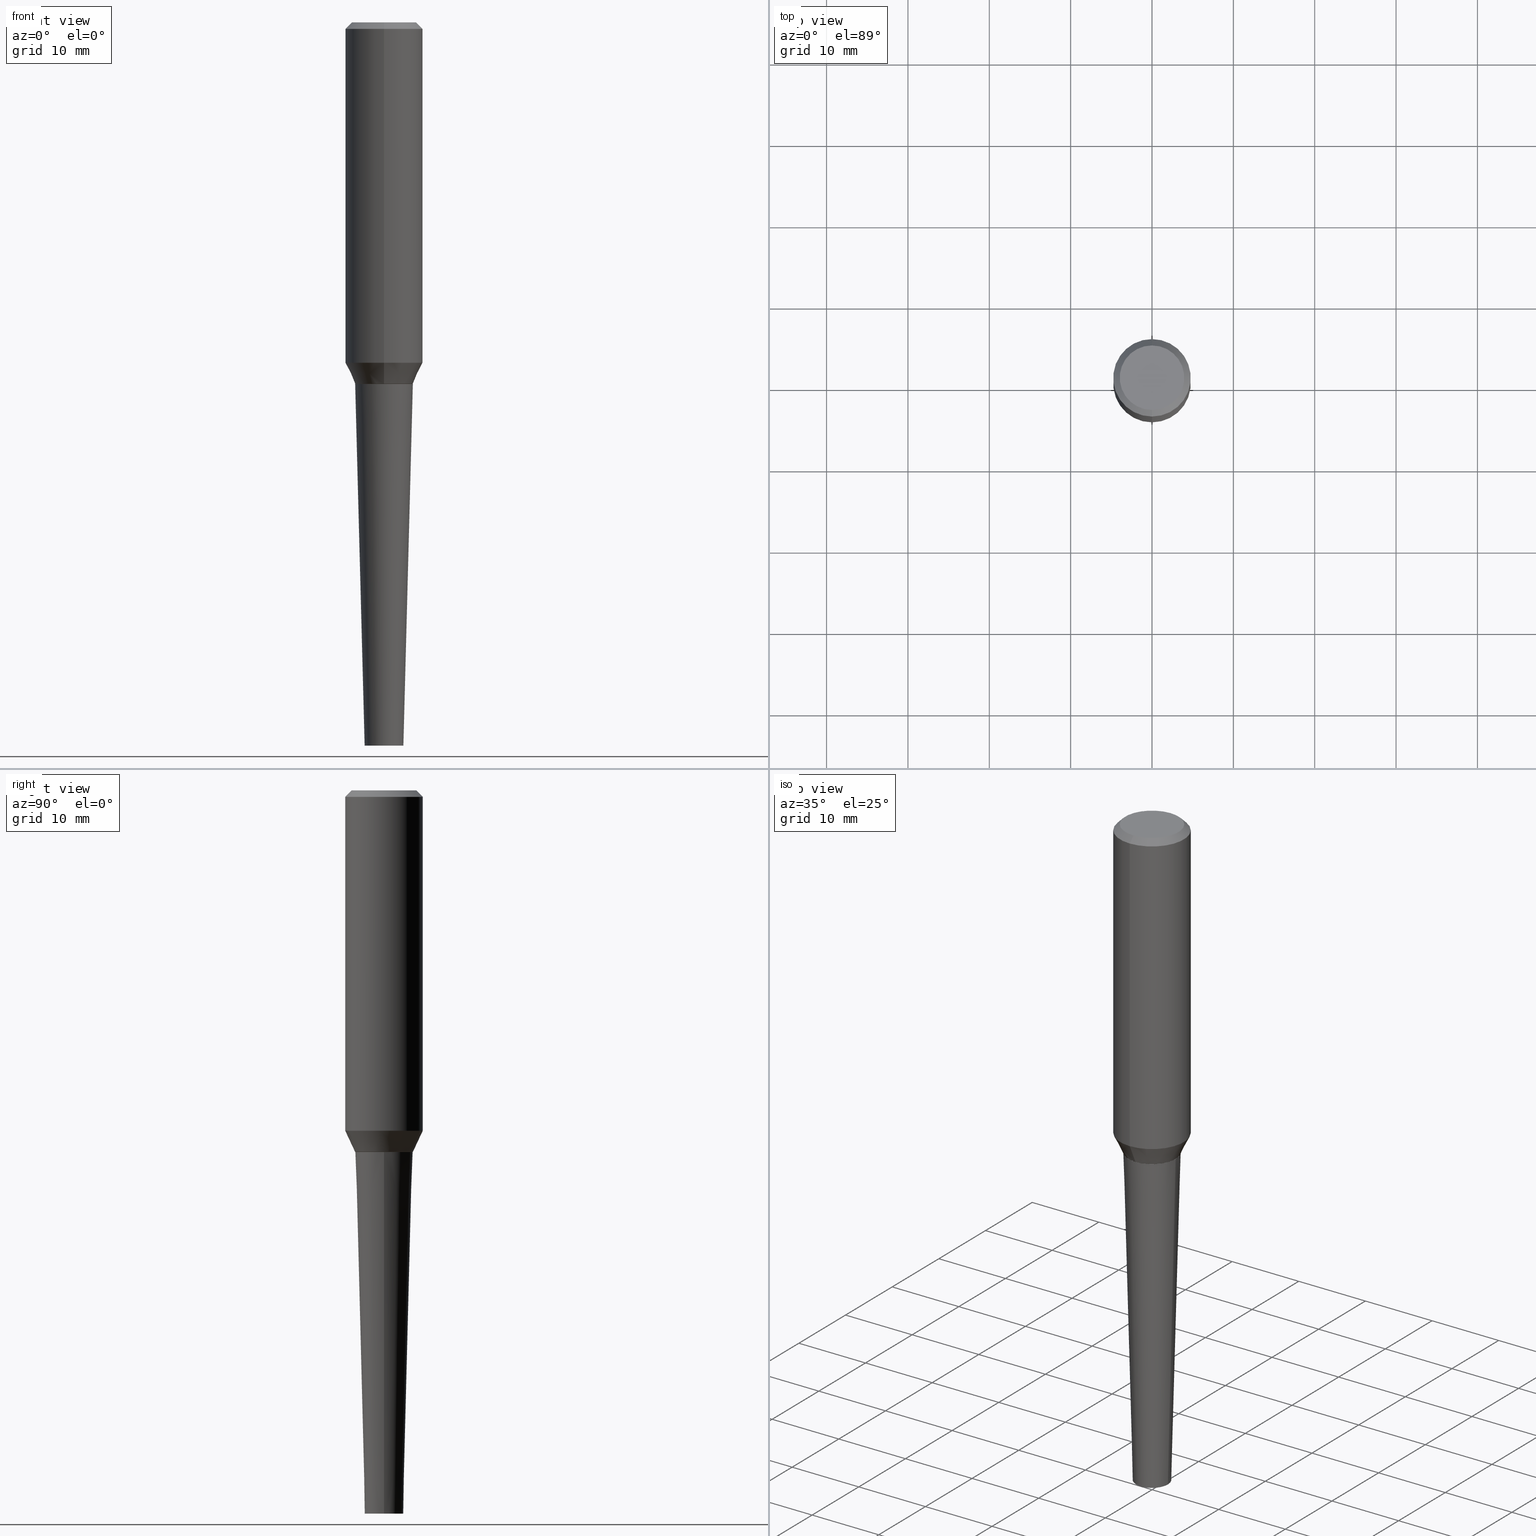
[diagram: canonical four-view strip — front | top / right | iso, engineering-drawing reading convention]
A machine part, canonical four-view strip (front | top / right | iso — engineering-drawing reading convention). The complete STEP part file that produces these views, byte-faithful:
ISO-10303-21;
HEADER;
FILE_DESCRIPTION (( 'STEP AP203' ),
    '1' );
FILE_NAME ('32378.STEP',
    '2024-03-04T15:09:28',
    ( '' ),
    ( '' ),
    'SwSTEP 2.0',
    'SolidWorks 2023',
    '' );
FILE_SCHEMA (( 'CONFIG_CONTROL_DESIGN' ));
ENDSEC;

DATA;
#1 = UNCERTAINTY_MEASURE_WITH_UNIT (LENGTH_MEASURE( 1.000000000000000082E-05 ), #335, 'distance_accuracy_value', 'NONE');
#2 = CC_DESIGN_SECURITY_CLASSIFICATION ( #140, ( #26 ) ) ;
#3 = DIRECTION ( 'NONE',  ( 1.000000000000000000, -6.982962677686264344E-15, 0.000000000000000000 ) ) ;
#4 = AXIS2_PLACEMENT_3D ( 'NONE', #11, #306, #16 ) ;
#5 = FACE_OUTER_BOUND ( 'NONE', #399, .T. ) ;
#6 = DIRECTION ( 'NONE',  ( -2.680706346625087460E-29, 3.154607792043817320E-15, 1.000000000000000000 ) ) ;
#7 = ORIENTED_EDGE ( 'NONE', *, *, #218, .T. ) ;
#8 = CARTESIAN_POINT ( 'NONE',  ( 4.348926392121621761E-29, -6.004218604581148608E-15, -1.749063130645136743 ) ) ;
#9 = AXIS2_PLACEMENT_3D ( 'NONE', #299, #270, #328 ) ;
#10 = EDGE_LOOP ( 'NONE', ( #206, #303, #17, #50 ) ) ;
#11 = CARTESIAN_POINT ( 'NONE',  ( 0.000000000000000000, 0.000000000000000000, 0.000000000000000000 ) ) ;
#12 = ORIENTED_EDGE ( 'NONE', *, *, #188, .F. ) ;
#13 = EDGE_CURVE ( 'NONE', #327, #46, #341, .T. ) ;
#14 = EDGE_CURVE ( 'NONE', #85, #46, #141, .T. ) ;
#15 = VERTEX_POINT ( 'NONE', #395 ) ;
#16 = DIRECTION ( 'NONE',  ( 1.000000000000000000, 0.000000000000000000, 0.000000000000000000 ) ) ;
#17 = ORIENTED_EDGE ( 'NONE', *, *, #300, .T. ) ;
#18 = VECTOR ( 'NONE', #119, 39.37007874015748143 ) ;
#19 = CARTESIAN_POINT ( 'NONE',  ( -0.1395753627460647461, -5.118349742072530161E-15, -1.750000000000000000 ) ) ;
#20 = COORDINATED_UNIVERSAL_TIME_OFFSET ( 5, 0, .BEHIND. ) ;
#21 = PRODUCT ( '32378', '32378', '', ( #331 ) ) ;
#22 = CARTESIAN_POINT ( 'NONE',  ( -1.286343374582167887E-15, -0.1875000000000010270, -0.03124999999999950734 ) ) ;
#23 = ADVANCED_FACE ( 'NONE', ( #107 ), #287, .T. ) ;
#24 = SECURITY_CLASSIFICATION_LEVEL ( 'unclassified' ) ;
#25 = FACE_OUTER_BOUND ( 'NONE', #305, .T. ) ;
#26 = PRODUCT_DEFINITION_FORMATION_WITH_SPECIFIED_SOURCE ( 'ANY', '', #21, .NOT_KNOWN. ) ;
#27 = ORIENTED_EDGE ( 'NONE', *, *, #72, .F. ) ;
#28 = CIRCLE ( 'NONE', #158, 0.1562500000000003886 ) ;
#29 = DATE_AND_TIME ( #86, #222 ) ;
#30 = DIRECTION ( 'NONE',  ( -2.680706346625087460E-29, 3.154607792043817320E-15, 1.000000000000000000 ) ) ;
#31 = EDGE_CURVE ( 'NONE', #366, #307, #155, .T. ) ;
#32 = DATE_AND_TIME ( #404, #196 ) ;
#33 = DIRECTION ( 'NONE',  ( 1.000000000000000000, -6.982962677686257244E-15, 0.000000000000000000 ) ) ;
#34 = VERTEX_POINT ( 'NONE', #19 ) ;
#35 = FACE_OUTER_BOUND ( 'NONE', #53, .T. ) ;
#36 = CLOSED_SHELL ( 'NONE', ( #92, #126, #114, #138 ) ) ;
#37 = CARTESIAN_POINT ( 'NONE',  ( -2.560261695147064885E-30, -5.851919173728164913E-16, -0.03125000000000010408 ) ) ;
#38 = DIRECTION ( 'NONE',  ( 1.000000000000000000, -6.982962677686264344E-15, 0.000000000000000000 ) ) ;
#39 = LINE ( 'NONE', #164, #275 ) ;
#40 = AXIS2_PLACEMENT_3D ( 'NONE', #221, #189, #69 ) ;
#41 = DIRECTION ( 'NONE',  ( -6.982962677686266711E-15, -1.000000000000000000, 2.913971193241881555E-15 ) ) ;
#42 = PERSON_AND_ORGANIZATION_ROLE ( 'design_owner' ) ;
#43 = ORIENTED_EDGE ( 'NONE', *, *, #262, .F. ) ;
#44 = PRODUCT_DEFINITION ( 'UNKNOWN', '', #26, #90 ) ;
#45 = CYLINDRICAL_SURFACE ( 'NONE', #407, 0.1875000000000001943 ) ;
#46 = VERTEX_POINT ( 'NONE', #22 ) ;
#47 = CIRCLE ( 'NONE', #347, 0.1390753627460646624 ) ;
#48 = CC_DESIGN_APPROVAL ( #213, ( #140 ) ) ;
#49 = AXIS2_PLACEMENT_3D ( 'NONE', #96, #97, #190 ) ;
#50 = ORIENTED_EDGE ( 'NONE', *, *, #14, .T. ) ;
#51 = DIRECTION ( 'NONE',  ( -2.680706346625087460E-29, 3.154607792043817320E-15, 1.000000000000000000 ) ) ;
#52 = CC_DESIGN_PERSON_AND_ORGANIZATION_ASSIGNMENT ( #358, #42, ( #21 ) ) ;
#53 = EDGE_LOOP ( 'NONE', ( #361, #345, #251, #127 ) ) ;
#54 = EDGE_LOOP ( 'NONE', ( #176, #274 ) ) ;
#55 = ADVANCED_FACE ( 'NONE', ( #250 ), #289, .T. ) ;
#56 = SHAPE_DEFINITION_REPRESENTATION ( #334, #136 ) ;
#57 = DATE_AND_TIME ( #215, #172 ) ;
#58 = DIRECTION ( 'NONE',  ( -2.445468806185136597E-29, 3.491481338843145583E-15, 1.000000000000000000 ) ) ;
#59 = CARTESIAN_POINT ( 'NONE',  ( 8.559140821647976968E-29, -1.222018468595100934E-14, -3.500000000000000000 ) ) ;
#60 = APPROVAL_DATE_TIME ( #281, #282 ) ;
#61 = CONICAL_SURFACE ( 'NONE', #40, 0.1390753627460646624, 0.7853981633974208565 ) ;
#62 = ADVANCED_FACE ( 'NONE', ( #410 ), #340, .T. ) ;
#63 = CIRCLE ( 'NONE', #95, 0.1400122321009280857 ) ;
#64 = APPROVAL_ROLE ( '' ) ;
#65 = DIRECTION ( 'NONE',  ( 6.982962677686265922E-15, 1.000000000000000000, -3.154607792043817320E-15 ) ) ;
#66 = DIRECTION ( 'NONE',  ( -2.680706346625087460E-29, 3.154607792043817320E-15, 1.000000000000000000 ) ) ;
#67 = DIRECTION ( 'NONE',  ( -2.445468806185136597E-29, 3.491481338843145583E-15, 1.000000000000000000 ) ) ;
#68 = VECTOR ( 'NONE', #110, 39.37007874015748854 ) ;
#69 = DIRECTION ( 'NONE',  ( -6.982962677686265133E-15, -1.000000000000000000, 3.928586544336106530E-15 ) ) ;
#70 = DIRECTION ( 'NONE',  ( -2.680706346625087460E-29, 3.154607792043817320E-15, 1.000000000000000000 ) ) ;
#71 = DIRECTION ( 'NONE',  ( -6.982962677686265922E-15, -1.000000000000000000, 3.154607792043816925E-15 ) ) ;
#72 = EDGE_CURVE ( 'NONE', #265, #108, #157, .T. ) ;
#73 = EDGE_CURVE ( 'NONE', #301, #265, #151, .T. ) ;
#74 = AXIS2_PLACEMENT_3D ( 'NONE', #59, #403, #244 ) ;
#75 = CARTESIAN_POINT ( 'NONE',  ( -3.397982428467408395E-30, -4.866104238714468673E-16, 1.912385453283800096E-17 ) ) ;
#76 = DIRECTION ( 'NONE',  ( -2.445468806185136597E-29, 3.491481338843145583E-15, 1.000000000000000000 ) ) ;
#77 = ORIENTED_EDGE ( 'NONE', *, *, #73, .T. ) ;
#78 = LENGTH_MEASURE_WITH_UNIT ( LENGTH_MEASURE( 0.02539999999999999897 ), #230 );
#79 = EDGE_LOOP ( 'NONE', ( #87, #171 ) ) ;
#80 = AXIS2_PLACEMENT_3D ( 'NONE', #285, #241, #33 ) ;
#81 = FACE_OUTER_BOUND ( 'NONE', #413, .T. ) ;
#82 = VECTOR ( 'NONE', #272, 39.37007874015748143 ) ;
#83 = ORIENTED_EDGE ( 'NONE', *, *, #346, .T. ) ;
#84 = CARTESIAN_POINT ( 'NONE',  ( 8.559140821647976968E-29, -1.222018468595100934E-14, -3.500000000000000000 ) ) ;
#85 = VERTEX_POINT ( 'NONE', #350 ) ;
#86 = CALENDAR_DATE ( 2024, 4, 3 ) ;
#87 = ORIENTED_EDGE ( 'NONE', *, *, #188, .T. ) ;
#88 = AXIS2_PLACEMENT_3D ( 'NONE', #183, #58, #279 ) ;
#89 = DIRECTION ( 'NONE',  ( -6.982962677686265922E-15, -1.000000000000000000, 3.154607792043817320E-15 ) ) ;
#90 = DESIGN_CONTEXT ( 'detailed design', #224, 'design' ) ;
#91 = EDGE_CURVE ( 'NONE', #366, #15, #308, .T. ) ;
#92 = ADVANCED_FACE ( 'NONE', ( #375 ), #266, .T. ) ;
#93 = PERSON_AND_ORGANIZATION ( #377, #202 ) ;
#94 = CARTESIAN_POINT ( 'NONE',  ( -9.711580674414047337E-16, -0.1390753627460706576, -1.749999999999999556 ) ) ;
#95 = AXIS2_PLACEMENT_3D ( 'NONE', #8, #51, #205 ) ;
#96 = CARTESIAN_POINT ( 'NONE',  ( 4.348926392121621761E-29, -6.004218604581148608E-15, -1.749063130645136743 ) ) ;
#97 = DIRECTION ( 'NONE',  ( -2.680706346625087460E-29, 3.154607792043817320E-15, 1.000000000000000000 ) ) ;
#98 = VECTOR ( 'NONE', #383, 39.37007874015748143 ) ;
#99 = PRODUCT_RELATED_PRODUCT_CATEGORY ( 'detail', '', ( #21 ) ) ;
#100 = AXIS2_PLACEMENT_3D ( 'NONE', #290, #219, #161 ) ;
#101 = DIRECTION ( 'NONE',  ( -1.000000000000000000, 6.982962677686265922E-15, -4.876176775795935793E-29 ) ) ;
#102 = FACE_OUTER_BOUND ( 'NONE', #169, .T. ) ;
#103 = ADVANCED_FACE ( 'NONE', ( #217 ), #116, .F. ) ;
#104 = APPROVAL_STATUS ( 'not_yet_approved' ) ;
#105 = EDGE_LOOP ( 'NONE', ( #337, #238, #208, #401 ) ) ;
#106 = ORIENTED_EDGE ( 'NONE', *, *, #291, .F. ) ;
#107 = FACE_OUTER_BOUND ( 'NONE', #390, .T. ) ;
#108 = VERTEX_POINT ( 'NONE', #312 ) ;
#109 = AXIS2_PLACEMENT_3D ( 'NONE', #223, #258, #71 ) ;
#110 = DIRECTION ( 'NONE',  ( 3.002883358794126890E-15, 0.4226182617407031050, 0.9063077870366481603 ) ) ;
#111 = VECTOR ( 'NONE', #212, 39.37007874015748143 ) ;
#112 = ORIENTED_EDGE ( 'NONE', *, *, #225, .T. ) ;
#113 = ORIENTED_EDGE ( 'NONE', *, *, #72, .T. ) ;
#114 = ADVANCED_FACE ( 'NONE', ( #25 ), #324, .T. ) ;
#115 = DATE_TIME_ROLE ( 'creation_date' ) ;
#116 = PLANE ( 'NONE',  #227 ) ;
#117 = VERTEX_POINT ( 'NONE', #122 ) ;
#118 = DIRECTION ( 'NONE',  ( 6.982962677686265922E-15, 1.000000000000000000, -3.164390592661096858E-15 ) ) ;
#119 = DIRECTION ( 'NONE',  ( -4.851104656540951653E-15, -0.7071067811865482389, -0.7071067811865467956 ) ) ;
#120 = AXIS2_PLACEMENT_3D ( 'NONE', #37, #70, #194 ) ;
#121 = PERSON_AND_ORGANIZATION ( #377, #202 ) ;
#122 = CARTESIAN_POINT ( 'NONE',  ( 1.200196710227326894E-15, 0.1562499999999999167, -3.833404845704254927E-16 ) ) ;
#123 = CALENDAR_DATE ( 2024, 4, 3 ) ;
#124 = CARTESIAN_POINT ( 'NONE',  ( 4.351437863747162005E-29, -6.007174059948127867E-15, -1.750000000000000222 ) ) ;
#125 = CARTESIAN_POINT ( 'NONE',  ( 6.546527510331736872E-16, 0.09374999999998785694, -3.500000000000000444 ) ) ;
#126 = ADVANCED_FACE ( 'NONE', ( #368 ), #182, .T. ) ;
#127 = ORIENTED_EDGE ( 'NONE', *, *, #300, .F. ) ;
#128 = CARTESIAN_POINT ( 'NONE',  ( 1.332267629550185482E-15, 0.1874999999999996947, -5.723651064753783135E-16 ) ) ;
#129 = LINE ( 'NONE', #357, #313 ) ;
#130 = PLANE ( 'NONE',  #100 ) ;
#131 = CIRCLE ( 'NONE', #120, 0.1875000000000004718 ) ;
#132 = AXIS2_PLACEMENT_3D ( 'NONE', #125, #288, #101 ) ;
#133 = CARTESIAN_POINT ( 'NONE',  ( 1.332267629550207373E-15, 0.1874999999999942824, -1.647225283746026170 ) ) ;
#134 = DIRECTION ( 'NONE',  ( -6.982962677686265922E-15, -1.000000000000000000, 3.164390592661096858E-15 ) ) ;
#135 = DIRECTION ( 'NONE',  ( 2.680706346625087460E-29, -3.154607792043817320E-15, -1.000000000000000000 ) ) ;
#136 = ADVANCED_BREP_SHAPE_REPRESENTATION ( '32378', ( #389, #247, #4 ), #186 ) ;
#137 =( NAMED_UNIT ( * ) SI_UNIT ( $, .STERADIAN. ) SOLID_ANGLE_UNIT ( ) );
#138 = ADVANCED_FACE ( 'NONE', ( #378 ), #130, .F. ) ;
#139 = ORIENTED_EDGE ( 'NONE', *, *, #91, .T. ) ;
#140 = SECURITY_CLASSIFICATION ( '', '', #24 ) ;
#141 = CIRCLE ( 'NONE', #166, 0.1875000000000004718 ) ;
#142 = AXIS2_PLACEMENT_3D ( 'NONE', #321, #226, #322 ) ;
#143 = PLANE ( 'NONE',  #9 ) ;
#144 = ORIENTED_EDGE ( 'NONE', *, *, #343, .F. ) ;
#145 = FACE_OUTER_BOUND ( 'NONE', #105, .T. ) ;
#146 = ORIENTED_EDGE ( 'NONE', *, *, #193, .T. ) ;
#147 = CARTESIAN_POINT ( 'NONE',  ( 9.948467443687599903E-16, 0.1400122321009222015, -1.749063130645137187 ) ) ;
#148 = ORIENTED_EDGE ( 'NONE', *, *, #152, .F. ) ;
#149 = ADVANCED_FACE ( 'NONE', ( #255 ), #256, .T. ) ;
#150 = DIRECTION ( 'NONE',  ( 1.000000000000000000, -6.982962677686257244E-15, 0.000000000000000000 ) ) ;
#151 = CIRCLE ( 'NONE', #74, 0.09375000000000006939 ) ;
#152 = EDGE_CURVE ( 'NONE', #307, #179, #129, .T. ) ;
#153 = ORIENTED_EDGE ( 'NONE', *, *, #177, .T. ) ;
#154 = DIRECTION ( 'NONE',  ( -6.982962677686265133E-15, -1.000000000000000000, 3.928586544336106530E-15 ) ) ;
#155 = LINE ( 'NONE', #94, #111 ) ;
#156 = PERSON_AND_ORGANIZATION ( #377, #202 ) ;
#157 = LINE ( 'NONE', #310, #203 ) ;
#158 = AXIS2_PLACEMENT_3D ( 'NONE', #351, #252, #220 ) ;
#159 = COORDINATED_UNIVERSAL_TIME_OFFSET ( 5, 0, .BEHIND. ) ;
#160 = CARTESIAN_POINT ( 'NONE',  ( -2.560261695147064885E-30, -5.851919173728164913E-16, -0.03125000000000010408 ) ) ;
#161 = DIRECTION ( 'NONE',  ( -1.000000000000000000, 6.982962677686265922E-15, -4.876176775795935793E-29 ) ) ;
#162 = DIRECTION ( 'NONE',  ( -2.680706346625087460E-29, 3.154607792043817320E-15, 1.000000000000000000 ) ) ;
#163 = DIRECTION ( 'NONE',  ( -2.680706346625087460E-29, 3.154607792043817320E-15, 1.000000000000000000 ) ) ;
#164 = CARTESIAN_POINT ( 'NONE',  ( 1.309305502066175600E-15, 0.1874999999999998890, -0.03125000000000069389 ) ) ;
#165 = CIRCLE ( 'NONE', #398, 0.1395753627460647461 ) ;
#166 = AXIS2_PLACEMENT_3D ( 'NONE', #263, #391, #134 ) ;
#167 = CARTESIAN_POINT ( 'NONE',  ( -1.309305502066179544E-15, -0.1875000000000006661, 6.106128155410544140E-16 ) ) ;
#168 = CARTESIAN_POINT ( 'NONE',  ( 9.881898872242144353E-16, 0.1390753627460586395, -1.750000000000000666 ) ) ;
#169 = EDGE_LOOP ( 'NONE', ( #396, #336, #369, #333 ) ) ;
#170 = CARTESIAN_POINT ( 'NONE',  ( -1.179148093366987707E-15, -0.1562500000000008604, 6.024744504432698109E-16 ) ) ;
#171 = ORIENTED_EDGE ( 'NONE', *, *, #291, .T. ) ;
#172 = LOCAL_TIME ( 10, 9, 28.00000000000000000, #409 ) ;
#173 = DIRECTION ( 'NONE',  ( -6.982962677686266711E-15, -1.000000000000000000, 3.902299038693998666E-15 ) ) ;
#174 = ORIENTED_EDGE ( 'NONE', *, *, #152, .T. ) ;
#175 = DIRECTION ( 'NONE',  ( 4.937700262164538576E-15, 0.7071067811865437980, -0.7071067811865512365 ) ) ;
#176 = ORIENTED_EDGE ( 'NONE', *, *, #304, .F. ) ;
#177 = EDGE_CURVE ( 'NONE', #201, #85, #414, .T. ) ;
#178 = EDGE_CURVE ( 'NONE', #46, #85, #131, .T. ) ;
#179 = VERTEX_POINT ( 'NONE', #323 ) ;
#180 = PERSON_AND_ORGANIZATION_ROLE ( 'creator' ) ;
#181 = PERSON_AND_ORGANIZATION_ROLE ( 'classification_officer' ) ;
#182 = PLANE ( 'NONE',  #132 ) ;
#183 = CARTESIAN_POINT ( 'NONE',  ( 8.559140821647976968E-29, -1.222018468595100934E-14, -3.500000000000000000 ) ) ;
#184 = PERSON_AND_ORGANIZATION ( #377, #202 ) ;
#185 = AXIS2_PLACEMENT_3D ( 'NONE', #416, #67, #3 ) ;
#186 =( GEOMETRIC_REPRESENTATION_CONTEXT ( 3 ) GLOBAL_UNCERTAINTY_ASSIGNED_CONTEXT ( ( #1 ) ) GLOBAL_UNIT_ASSIGNED_CONTEXT ( ( #335, #207, #137 ) ) REPRESENTATION_CONTEXT ( 'NONE', 'WORKASPACE' ) );
#187 = DIRECTION ( 'NONE',  ( 2.680706346625086899E-29, -3.154607792043817320E-15, -1.000000000000000000 ) ) ;
#188 = EDGE_CURVE ( 'NONE', #108, #34, #355, .T. ) ;
#189 = DIRECTION ( 'NONE',  ( -2.680706346625087460E-29, 3.154607792043817320E-15, 1.000000000000000000 ) ) ;
#190 = DIRECTION ( 'NONE',  ( -6.982962677686266711E-15, -1.000000000000000000, 3.902299038693997878E-15 ) ) ;
#191 = VECTOR ( 'NONE', #162, 39.37007874015748143 ) ;
#192 = DIRECTION ( 'NONE',  ( -2.445468806185136597E-29, 3.491481338843145583E-15, 1.000000000000000000 ) ) ;
#193 = EDGE_CURVE ( 'NONE', #301, #34, #319, .T. ) ;
#194 = DIRECTION ( 'NONE',  ( -6.982962677686265922E-15, -1.000000000000000000, 3.164390592661096858E-15 ) ) ;
#195 = DIRECTION ( 'NONE',  ( -0.02617694830786604712, 3.676283300035236100E-15, 0.9996573249755573709 ) ) ;
#196 = LOCAL_TIME ( 10, 9, 28.00000000000000000, #159 ) ;
#197 = CARTESIAN_POINT ( 'NONE',  ( 9.948467443687592014E-16, 0.1400122321009221182, -1.749063130645137187 ) ) ;
#198 = EDGE_LOOP ( 'NONE', ( #200, #146, #12, #27 ) ) ;
#199 = DIRECTION ( 'NONE',  ( -6.982962677686265922E-15, -1.000000000000000000, 3.154607792043817320E-15 ) ) ;
#200 = ORIENTED_EDGE ( 'NONE', *, *, #304, .T. ) ;
#201 = VERTEX_POINT ( 'NONE', #133 ) ;
#202 = ORGANIZATION ( 'UNSPECIFIED', 'UNSPECIFIED', '' ) ;
#203 = VECTOR ( 'NONE', #317, 39.37007874015748143 ) ;
#204 = CIRCLE ( 'NONE', #257, 0.09375000000000006939 ) ;
#205 = DIRECTION ( 'NONE',  ( -6.982962677686266711E-15, -1.000000000000000000, 3.902299038693998666E-15 ) ) ;
#206 = ORIENTED_EDGE ( 'NONE', *, *, #13, .F. ) ;
#207 =( NAMED_UNIT ( * ) PLANE_ANGLE_UNIT ( ) SI_UNIT ( $, .RADIAN. ) );
#208 = ORIENTED_EDGE ( 'NONE', *, *, #262, .T. ) ;
#209 = ADVANCED_FACE ( 'NONE', ( #35 ), #284, .T. ) ;
#210 = PERSON_AND_ORGANIZATION_ROLE ( 'creator' ) ;
#211 = ORIENTED_EDGE ( 'NONE', *, *, #343, .T. ) ;
#212 = DIRECTION ( 'NONE',  ( -4.937700262164413936E-15, -0.7071067811865259234, 0.7071067811865691111 ) ) ;
#213 = APPROVAL ( #248, 'UNSPECIFIED' ) ;
#214 = CARTESIAN_POINT ( 'NONE',  ( 4.351437863747162005E-29, -6.007174059948127867E-15, -1.750000000000000222 ) ) ;
#215 = CALENDAR_DATE ( 2024, 4, 3 ) ;
#216 = CIRCLE ( 'NONE', #142, 0.1874999999999999445 ) ;
#217 = FACE_OUTER_BOUND ( 'NONE', #280, .T. ) ;
#218 = EDGE_CURVE ( 'NONE', #327, #117, #234, .T. ) ;
#219 = DIRECTION ( 'NONE',  ( 2.438088387897960049E-29, -3.491481338843145188E-15, -1.000000000000000000 ) ) ;
#220 = DIRECTION ( 'NONE',  ( -6.982962677686265922E-15, -1.000000000000000000, 3.154607792043816925E-15 ) ) ;
#221 = CARTESIAN_POINT ( 'NONE',  ( 4.351437863747162005E-29, -6.007174059948127867E-15, -1.750000000000000222 ) ) ;
#222 = LOCAL_TIME ( 10, 9, 28.00000000000000000, #372 ) ;
#223 = CARTESIAN_POINT ( 'NONE',  ( -3.397982428467410497E-30, -4.866104238714465715E-16, 1.095669829364221468E-16 ) ) ;
#224 = APPLICATION_CONTEXT ( 'configuration controlled 3d designs of mechanical parts and assemblies' ) ;
#225 = EDGE_CURVE ( 'NONE', #117, #327, #28, .T. ) ;
#226 = DIRECTION ( 'NONE',  ( -2.680706346625087460E-29, 3.154607792043817320E-15, 1.000000000000000000 ) ) ;
#227 = AXIS2_PLACEMENT_3D ( 'NONE', #412, #187, #65 ) ;
#228 = APPROVAL_ROLE ( '' ) ;
#229 = ORIENTED_EDGE ( 'NONE', *, *, #373, .T. ) ;
#230 =( LENGTH_UNIT ( ) NAMED_UNIT ( * ) SI_UNIT ( $, .METRE. ) );
#231 = APPLICATION_CONTEXT ( 'configuration controlled 3d designs of mechanical parts and assemblies' ) ;
#232 = ORIENTED_EDGE ( 'NONE', *, *, #31, .F. ) ;
#233 = ORIENTED_EDGE ( 'NONE', *, *, #178, .F. ) ;
#234 = CIRCLE ( 'NONE', #109, 0.1562500000000003886 ) ;
#235 = AXIS2_PLACEMENT_3D ( 'NONE', #246, #30, #89 ) ;
#236 = CC_DESIGN_PERSON_AND_ORGANIZATION_ASSIGNMENT ( #93, #181, ( #140 ) ) ;
#237 = VECTOR ( 'NONE', #195, 39.37007874015748143 ) ;
#238 = ORIENTED_EDGE ( 'NONE', *, *, #253, .T. ) ;
#239 = EDGE_LOOP ( 'NONE', ( #139, #83, #144, #232 ) ) ;
#240 = APPROVAL_DATE_TIME ( #349, #213 ) ;
#241 = DIRECTION ( 'NONE',  ( -2.445468806185136597E-29, 3.491481338843145583E-15, 1.000000000000000000 ) ) ;
#242 = AXIS2_PLACEMENT_3D ( 'NONE', #214, #344, #154 ) ;
#243 = AXIS2_PLACEMENT_3D ( 'NONE', #397, #6, #173 ) ;
#244 = DIRECTION ( 'NONE',  ( 1.000000000000000000, -6.982962677686257244E-15, 0.000000000000000000 ) ) ;
#245 = CC_DESIGN_PERSON_AND_ORGANIZATION_ASSIGNMENT ( #121, #342, ( #26 ) ) ;
#246 = CARTESIAN_POINT ( 'NONE',  ( -3.397982428467408395E-30, -4.866104238714468673E-16, 1.912385453283800096E-17 ) ) ;
#247 = MANIFOLD_SOLID_BREP ( 'Body-Move/Copy2[2]', #276 ) ;
#248 = APPROVAL_STATUS ( 'not_yet_approved' ) ;
#249 = DIRECTION ( 'NONE',  ( -6.982962677686265133E-15, -1.000000000000000000, 3.928586544336106530E-15 ) ) ;
#250 = FACE_OUTER_BOUND ( 'NONE', #10, .T. ) ;
#251 = ORIENTED_EDGE ( 'NONE', *, *, #178, .T. ) ;
#252 = DIRECTION ( 'NONE',  ( -2.680706346625087460E-29, 3.154607792043817320E-15, 1.000000000000000000 ) ) ;
#253 = EDGE_CURVE ( 'NONE', #201, #179, #370, .T. ) ;
#254 = DIRECTION ( 'NONE',  ( -6.982962677686266711E-15, -1.000000000000000000, 3.902299038693997878E-15 ) ) ;
#255 = FACE_OUTER_BOUND ( 'NONE', #367, .T. ) ;
#256 = CONICAL_SURFACE ( 'NONE', #49, 0.1400122321009281134, 0.4363323129985833271 ) ;
#257 = AXIS2_PLACEMENT_3D ( 'NONE', #84, #76, #150 ) ;
#258 = DIRECTION ( 'NONE',  ( -2.680706346625087460E-29, 3.154607792043817320E-15, 1.000000000000000000 ) ) ;
#259 = ORIENTED_EDGE ( 'NONE', *, *, #411, .F. ) ;
#260 = LINE ( 'NONE', #167, #191 ) ;
#261 = EDGE_CURVE ( 'NONE', #15, #366, #47, .T. ) ;
#262 = EDGE_CURVE ( 'NONE', #179, #46, #260, .T. ) ;
#263 = CARTESIAN_POINT ( 'NONE',  ( -2.560261695147064885E-30, -5.851919173728164913E-16, -0.03125000000000010408 ) ) ;
#264 = APPLICATION_PROTOCOL_DEFINITION ( 'international standard', 'config_control_design', 1994, #224 ) ;
#265 = VERTEX_POINT ( 'NONE', #296 ) ;
#266 = CONICAL_SURFACE ( 'NONE', #88, 0.09375000000000006939, 0.02617993877990783605 ) ;
#267 = LINE ( 'NONE', #168, #82 ) ;
#268 = ORIENTED_EDGE ( 'NONE', *, *, #261, .F. ) ;
#269 = ADVANCED_FACE ( 'NONE', ( #5 ), #294, .T. ) ;
#270 = DIRECTION ( 'NONE',  ( -2.680706346625086899E-29, 3.154607792043817320E-15, 1.000000000000000000 ) ) ;
#271 = ORIENTED_EDGE ( 'NONE', *, *, #253, .F. ) ;
#272 = DIRECTION ( 'NONE',  ( 5.024295867787922761E-15, 0.7071067811865303643, 0.7071067811865646702 ) ) ;
#273 = ADVANCED_FACE ( 'NONE', ( #102 ), #61, .T. ) ;
#274 = ORIENTED_EDGE ( 'NONE', *, *, #73, .F. ) ;
#275 = VECTOR ( 'NONE', #175, 39.37007874015748143 ) ;
#276 = CLOSED_SHELL ( 'NONE', ( #149, #23, #209, #62, #273, #362, #103, #55, #359, #269 ) ) ;
#277 = APPLICATION_PROTOCOL_DEFINITION ( 'international standard', 'config_control_design', 1994, #231 ) ;
#278 = ORIENTED_EDGE ( 'NONE', *, *, #91, .F. ) ;
#279 = DIRECTION ( 'NONE',  ( 1.000000000000000000, -6.982962677686257244E-15, 0.000000000000000000 ) ) ;
#280 = EDGE_LOOP ( 'NONE', ( #112, #7 ) ) ;
#281 = DATE_AND_TIME ( #123, #381 ) ;
#282 = APPROVAL ( #309, 'UNSPECIFIED' ) ;
#283 = AXIS2_PLACEMENT_3D ( 'NONE', #385, #66, #254 ) ;
#284 = CONICAL_SURFACE ( 'NONE', #320, 0.1875000000000004718, 0.7853981633974461696 ) ;
#285 = CARTESIAN_POINT ( 'NONE',  ( 8.559140821647976968E-29, -1.222018468595100934E-14, -3.500000000000000000 ) ) ;
#286 = DATE_TIME_ROLE ( 'classification_date' ) ;
#287 = CYLINDRICAL_SURFACE ( 'NONE', #235, 0.1875000000000001943 ) ;
#288 = DIRECTION ( 'NONE',  ( 2.438088387897960049E-29, -3.491481338843145188E-15, -1.000000000000000000 ) ) ;
#289 = CONICAL_SURFACE ( 'NONE', #325, 0.1875000000000004718, 0.7853981633974461696 ) ;
#290 = CARTESIAN_POINT ( 'NONE',  ( 9.746495487803351072E-16, 0.1395753627460586399, -1.750000000000000666 ) ) ;
#291 = EDGE_CURVE ( 'NONE', #34, #108, #165, .T. ) ;
#292 = CARTESIAN_POINT ( 'NONE',  ( -2.560261695147064885E-30, -5.851919173728164913E-16, -0.03125000000000010408 ) ) ;
#293 = DIRECTION ( 'NONE',  ( -2.680706346625087460E-29, 3.154607792043817320E-15, 1.000000000000000000 ) ) ;
#294 = CONICAL_SURFACE ( 'NONE', #283, 0.1400122321009281134, 0.4363323129985833271 ) ;
#295 = EDGE_CURVE ( 'NONE', #179, #201, #216, .T. ) ;
#296 = CARTESIAN_POINT ( 'NONE',  ( 0.09375000000000006939, -1.287483743698409606E-14, -3.500000000000000000 ) ) ;
#297 = CARTESIAN_POINT ( 'NONE',  ( -9.711580674414047337E-16, -0.1390753627460706576, -1.749999999999999556 ) ) ;
#298 = ORIENTED_EDGE ( 'NONE', *, *, #295, .T. ) ;
#299 = CARTESIAN_POINT ( 'NONE',  ( 4.231890398279741872E-29, -6.178372834716649577E-15, -1.750000000000000222 ) ) ;
#300 = EDGE_CURVE ( 'NONE', #117, #85, #39, .T. ) ;
#301 = VERTEX_POINT ( 'NONE', #326 ) ;
#302 = CARTESIAN_POINT ( 'NONE',  ( -9.777001911802836843E-16, -0.1400122321009340254, -1.749063130645136077 ) ) ;
#303 = ORIENTED_EDGE ( 'NONE', *, *, #225, .F. ) ;
#304 = EDGE_CURVE ( 'NONE', #265, #301, #204, .T. ) ;
#305 = EDGE_LOOP ( 'NONE', ( #329, #77, #113, #106 ) ) ;
#306 = DIRECTION ( 'NONE',  ( 0.000000000000000000, 0.000000000000000000, 1.000000000000000000 ) ) ;
#307 = VERTEX_POINT ( 'NONE', #302 ) ;
#308 = CIRCLE ( 'NONE', #242, 0.1390753627460646624 ) ;
#309 = APPROVAL_STATUS ( 'not_yet_approved' ) ;
#310 = CARTESIAN_POINT ( 'NONE',  ( 0.09375000000000006939, -1.287483743698409606E-14, -3.500000000000000000 ) ) ;
#311 = CARTESIAN_POINT ( 'NONE',  ( -1.286343374582167887E-15, -0.1875000000000010270, -0.03124999999999950734 ) ) ;
#312 = CARTESIAN_POINT ( 'NONE',  ( 0.1395753627460647461, -7.084741891755795010E-15, -1.750000000000000000 ) ) ;
#313 = VECTOR ( 'NONE', #352, 39.37007874015748143 ) ;
#314 = APPROVAL_ROLE ( '' ) ;
#315 = CIRCLE ( 'NONE', #243, 0.1400122321009280857 ) ;
#316 = CALENDAR_DATE ( 2024, 4, 3 ) ;
#317 = DIRECTION ( 'NONE',  ( 0.02617694830786604712, 3.307492242340466312E-15, 0.9996573249755573709 ) ) ;
#318 = CARTESIAN_POINT ( 'NONE',  ( 4.279570410823988484E-29, -6.110092342975504671E-15, -1.750000000000000000 ) ) ;
#319 = LINE ( 'NONE', #354, #237 ) ;
#320 = AXIS2_PLACEMENT_3D ( 'NONE', #292, #135, #380 ) ;
#321 = CARTESIAN_POINT ( 'NONE',  ( 4.075929029612540181E-29, -5.682960139228247443E-15, -1.647225283746025726 ) ) ;
#322 = DIRECTION ( 'NONE',  ( -6.982962677686266711E-15, -1.000000000000000000, 2.913971193241881555E-15 ) ) ;
#323 = CARTESIAN_POINT ( 'NONE',  ( -1.309305502066133790E-15, -0.1875000000000056066, -1.647225283746025060 ) ) ;
#324 = CONICAL_SURFACE ( 'NONE', #80, 0.09375000000000006939, 0.02617993877990783605 ) ;
#325 = AXIS2_PLACEMENT_3D ( 'NONE', #160, #338, #118 ) ;
#326 = CARTESIAN_POINT ( 'NONE',  ( -0.09375000000000006939, -8.336200306624222789E-15, -3.500000000000000000 ) ) ;
#327 = VERTEX_POINT ( 'NONE', #170 ) ;
#328 = DIRECTION ( 'NONE',  ( -6.982962677686265922E-15, -1.000000000000000000, 3.154607792043817320E-15 ) ) ;
#329 = ORIENTED_EDGE ( 'NONE', *, *, #193, .F. ) ;
#330 = DIMENSIONAL_EXPONENTS ( 1.000000000000000000, 0.000000000000000000, 0.000000000000000000, 0.000000000000000000, 0.000000000000000000, 0.000000000000000000, 0.000000000000000000 ) ;
#331 = MECHANICAL_CONTEXT ( 'NONE', #231, 'mechanical' ) ;
#332 = CC_DESIGN_APPROVAL ( #339, ( #44 ) ) ;
#333 = ORIENTED_EDGE ( 'NONE', *, *, #373, .F. ) ;
#334 = PRODUCT_DEFINITION_SHAPE ( 'NONE', 'NONE',  #44 ) ;
#335 =( CONVERSION_BASED_UNIT ( 'INCH', #78 ) LENGTH_UNIT ( ) NAMED_UNIT ( #330 ) );
#336 = ORIENTED_EDGE ( 'NONE', *, *, #261, .T. ) ;
#337 = ORIENTED_EDGE ( 'NONE', *, *, #177, .F. ) ;
#338 = DIRECTION ( 'NONE',  ( 2.680706346625087460E-29, -3.154607792043817320E-15, -1.000000000000000000 ) ) ;
#339 = APPROVAL ( #104, 'UNSPECIFIED' ) ;
#340 = CONICAL_SURFACE ( 'NONE', #382, 0.1390753627460646624, 0.7853981633974208565 ) ;
#341 = LINE ( 'NONE', #311, #18 ) ;
#342 = PERSON_AND_ORGANIZATION_ROLE ( 'design_supplier' ) ;
#343 = EDGE_CURVE ( 'NONE', #307, #363, #63, .T. ) ;
#344 = DIRECTION ( 'NONE',  ( -2.680706346625087460E-29, 3.154607792043817320E-15, 1.000000000000000000 ) ) ;
#345 = ORIENTED_EDGE ( 'NONE', *, *, #13, .T. ) ;
#346 = EDGE_CURVE ( 'NONE', #15, #363, #267, .T. ) ;
#347 = AXIS2_PLACEMENT_3D ( 'NONE', #415, #293, #356 ) ;
#348 = LOCAL_TIME ( 10, 9, 28.00000000000000000, #20 ) ;
#349 = DATE_AND_TIME ( #316, #348 ) ;
#350 = CARTESIAN_POINT ( 'NONE',  ( 1.309305502066175600E-15, 0.1874999999999998890, -0.03125000000000069389 ) ) ;
#351 = CARTESIAN_POINT ( 'NONE',  ( -3.397982428467410497E-30, -4.866104238714465715E-16, 1.095669829364221468E-16 ) ) ;
#352 = DIRECTION ( 'NONE',  ( -2.951127548643979994E-15, -0.4226182617406973874, 0.9063077870366508249 ) ) ;
#353 = APPROVAL_PERSON_ORGANIZATION ( #387, #339, #228 ) ;
#354 = CARTESIAN_POINT ( 'NONE',  ( -0.09375000000000006939, -1.155405087117591384E-14, -3.500000000000000000 ) ) ;
#355 = CIRCLE ( 'NONE', #185, 0.1395753627460647461 ) ;
#356 = DIRECTION ( 'NONE',  ( -6.982962677686265133E-15, -1.000000000000000000, 3.928586544336106530E-15 ) ) ;
#357 = CARTESIAN_POINT ( 'NONE',  ( -9.777001911802844731E-16, -0.1400122321009341364, -1.749063130645136077 ) ) ;
#358 = PERSON_AND_ORGANIZATION ( #377, #202 ) ;
#359 = ADVANCED_FACE ( 'NONE', ( #145 ), #45, .T. ) ;
#360 = DIRECTION ( 'NONE',  ( -2.680706346625087460E-29, 3.154607792043817320E-15, 1.000000000000000000 ) ) ;
#361 = ORIENTED_EDGE ( 'NONE', *, *, #218, .F. ) ;
#362 = ADVANCED_FACE ( 'NONE', ( #81 ), #143, .F. ) ;
#363 = VERTEX_POINT ( 'NONE', #147 ) ;
#364 = CC_DESIGN_DATE_AND_TIME_ASSIGNMENT ( #32, #286, ( #140 ) ) ;
#365 = ORIENTED_EDGE ( 'NONE', *, *, #295, .F. ) ;
#366 = VERTEX_POINT ( 'NONE', #297 ) ;
#367 = EDGE_LOOP ( 'NONE', ( #211, #394, #365, #148 ) ) ;
#368 = FACE_OUTER_BOUND ( 'NONE', #54, .T. ) ;
#369 = ORIENTED_EDGE ( 'NONE', *, *, #31, .T. ) ;
#370 = CIRCLE ( 'NONE', #384, 0.1874999999999999445 ) ;
#371 = APPROVAL_DATE_TIME ( #57, #339 ) ;
#372 = COORDINATED_UNIVERSAL_TIME_OFFSET ( 5, 0, .BEHIND. ) ;
#373 = EDGE_CURVE ( 'NONE', #363, #307, #315, .T. ) ;
#374 = PERSON_AND_ORGANIZATION ( #377, #202 ) ;
#375 = FACE_OUTER_BOUND ( 'NONE', #198, .T. ) ;
#376 = APPROVAL_PERSON_ORGANIZATION ( #156, #213, #64 ) ;
#377 = PERSON ( 'UNSPECIFIED', 'UNSPECIFIED', 'UNSPECIFIED', ('UNSPECIFIED'), ('UNSPECIFIED'), ('UNSPECIFIED') ) ;
#378 = FACE_OUTER_BOUND ( 'NONE', #79, .T. ) ;
#379 = CC_DESIGN_DATE_AND_TIME_ASSIGNMENT ( #29, #115, ( #44 ) ) ;
#380 = DIRECTION ( 'NONE',  ( 6.982962677686265922E-15, 1.000000000000000000, -3.164390592661096858E-15 ) ) ;
#381 = LOCAL_TIME ( 10, 9, 28.00000000000000000, #402 ) ;
#382 = AXIS2_PLACEMENT_3D ( 'NONE', #124, #405, #249 ) ;
#383 = DIRECTION ( 'NONE',  ( -2.680706346625087460E-29, 3.154607792043817320E-15, 1.000000000000000000 ) ) ;
#384 = AXIS2_PLACEMENT_3D ( 'NONE', #386, #163, #41 ) ;
#385 = CARTESIAN_POINT ( 'NONE',  ( 4.348926392121621761E-29, -6.004218604581148608E-15, -1.749063130645136743 ) ) ;
#386 = CARTESIAN_POINT ( 'NONE',  ( 4.075929029612540181E-29, -5.682960139228247443E-15, -1.647225283746025726 ) ) ;
#387 = PERSON_AND_ORGANIZATION ( #377, #202 ) ;
#388 = CC_DESIGN_APPROVAL ( #282, ( #26 ) ) ;
#389 = MANIFOLD_SOLID_BREP ( 'Body-Move/Copy2[1]', #36 ) ;
#390 = EDGE_LOOP ( 'NONE', ( #298, #153, #233, #43 ) ) ;
#391 = DIRECTION ( 'NONE',  ( -2.680706346625087460E-29, 3.154607792043817320E-15, 1.000000000000000000 ) ) ;
#392 = LINE ( 'NONE', #197, #68 ) ;
#393 = CC_DESIGN_PERSON_AND_ORGANIZATION_ASSIGNMENT ( #374, #210, ( #26 ) ) ;
#394 = ORIENTED_EDGE ( 'NONE', *, *, #411, .T. ) ;
#395 = CARTESIAN_POINT ( 'NONE',  ( 9.915183157964871142E-16, 0.1390753627460586395, -1.750000000000000666 ) ) ;
#396 = ORIENTED_EDGE ( 'NONE', *, *, #346, .F. ) ;
#397 = CARTESIAN_POINT ( 'NONE',  ( 4.348926392121621761E-29, -6.004218604581148608E-15, -1.749063130645136743 ) ) ;
#398 = AXIS2_PLACEMENT_3D ( 'NONE', #318, #192, #38 ) ;
#399 = EDGE_LOOP ( 'NONE', ( #259, #229, #174, #271 ) ) ;
#400 = CC_DESIGN_PERSON_AND_ORGANIZATION_ASSIGNMENT ( #184, #180, ( #44 ) ) ;
#401 = ORIENTED_EDGE ( 'NONE', *, *, #14, .F. ) ;
#402 = COORDINATED_UNIVERSAL_TIME_OFFSET ( 5, 0, .BEHIND. ) ;
#403 = DIRECTION ( 'NONE',  ( -2.445468806185136597E-29, 3.491481338843145583E-15, 1.000000000000000000 ) ) ;
#404 = CALENDAR_DATE ( 2024, 4, 3 ) ;
#405 = DIRECTION ( 'NONE',  ( -2.680706346625087460E-29, 3.154607792043817320E-15, 1.000000000000000000 ) ) ;
#406 = APPROVAL_PERSON_ORGANIZATION ( #408, #282, #314 ) ;
#407 = AXIS2_PLACEMENT_3D ( 'NONE', #75, #360, #199 ) ;
#408 = PERSON_AND_ORGANIZATION ( #377, #202 ) ;
#409 = COORDINATED_UNIVERSAL_TIME_OFFSET ( 5, 0, .BEHIND. ) ;
#410 = FACE_OUTER_BOUND ( 'NONE', #239, .T. ) ;
#411 = EDGE_CURVE ( 'NONE', #363, #201, #392, .T. ) ;
#412 = CARTESIAN_POINT ( 'NONE',  ( 1.091087918388478385E-15, 0.1562499999999999167, -4.285620487722176581E-16 ) ) ;
#413 = EDGE_LOOP ( 'NONE', ( #278, #268 ) ) ;
#414 = LINE ( 'NONE', #128, #98 ) ;
#415 = CARTESIAN_POINT ( 'NONE',  ( 4.351437863747162005E-29, -6.007174059948127867E-15, -1.750000000000000222 ) ) ;
#416 = CARTESIAN_POINT ( 'NONE',  ( 4.279570410823988484E-29, -6.110092342975504671E-15, -1.750000000000000000 ) ) ;
ENDSEC;
END-ISO-10303-21;
